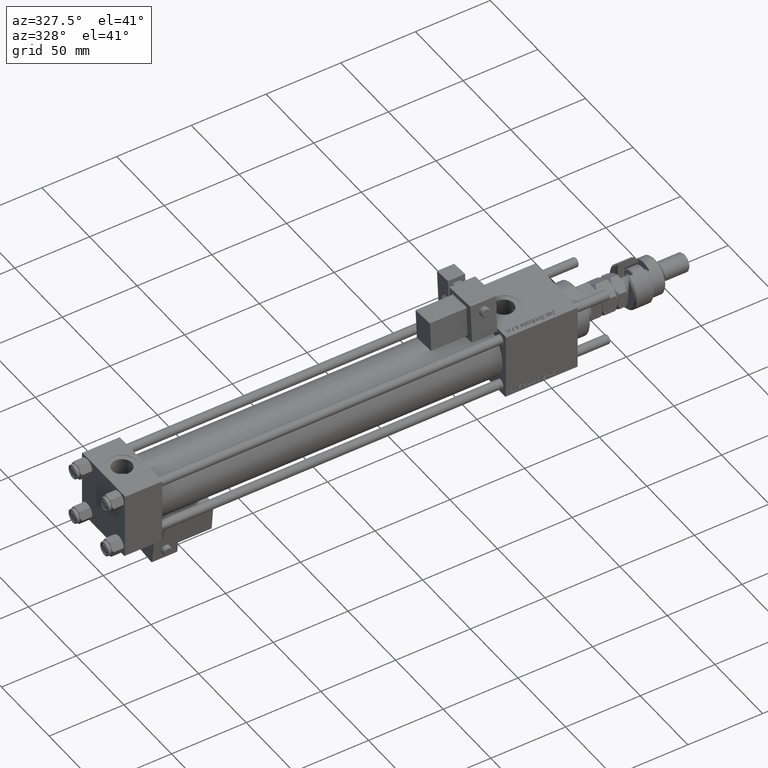
[diagram: clean part render]
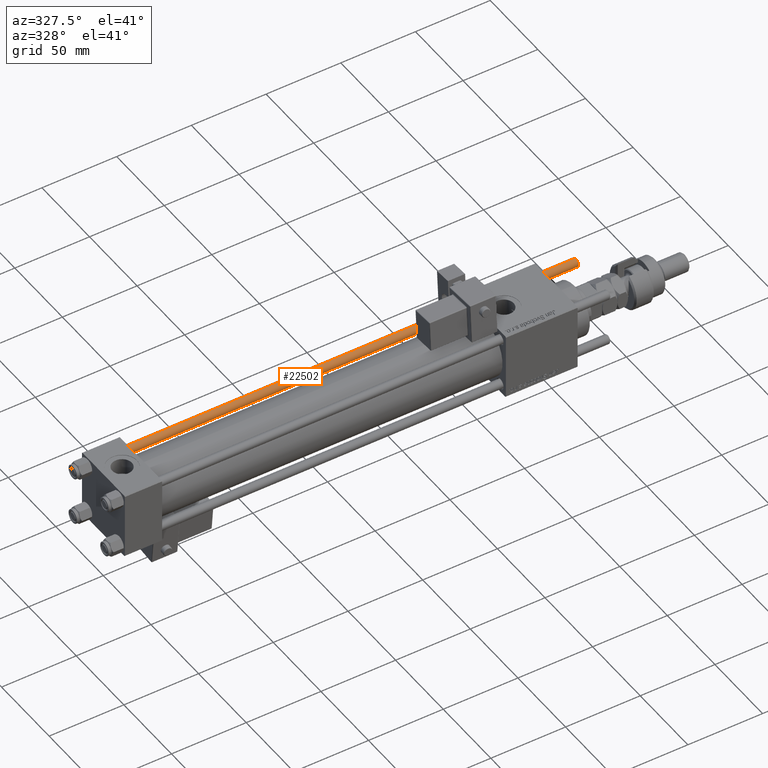
[diagram: same view with one face highlighted and labeled with its STEP entity id]
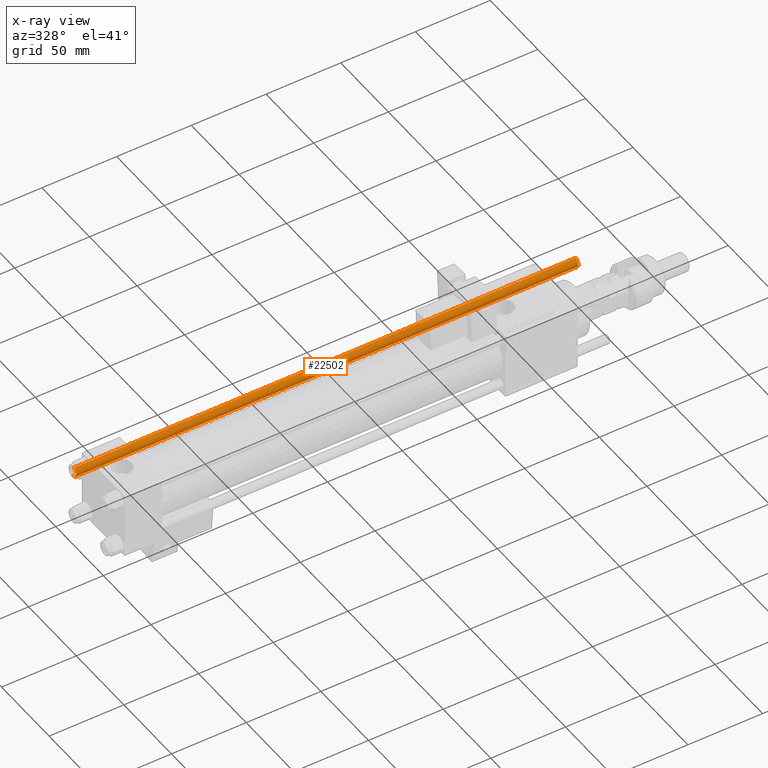
[diagram: x-ray of the same camera — body ghosted, the highlighted face saturated]
A machine part, auxiliary view. The second image highlights one B-rep face of the part: STEP entity #22502.
The next image is the same camera in x-ray: the body ghosted, the highlighted face saturated — about 0% of this face is hidden behind the body in this view.
In plain terms, the highlighted cylindrical surface (edge-blend (fillet) strip) has radius 3 mm, axis along (1, -0, -0).
Its self-contained STEP definition (entity closure, byte-faithful):
#3593 = DIRECTION ( 'NONE',  ( -0.000000000000000000, -0.000000000000000000, 1.000000000000000000 ) ) ;
#5248 = DIRECTION ( 'NONE',  ( -1.000000000000000000, 0.000000000000000000, 0.000000000000000000 ) ) ;
#8476 = VECTOR ( 'NONE', #39642, 1000.000000000000000 ) ;
#9162 = CARTESIAN_POINT ( 'NONE',  ( 0.000000000000000000, 0.000000000000000000, 336.5000000000000568 ) ) ;
#9396 = CARTESIAN_POINT ( 'NONE',  ( 0.000000000000000000, 0.000000000000000000, 0.5000000000000004441 ) ) ;
#10234 = EDGE_CURVE ( 'NONE', #48389, #12378, #14804, .T. ) ;
#11323 = ORIENTED_EDGE ( 'NONE', *, *, #10234, .T. ) ;
#12378 = VERTEX_POINT ( 'NONE', #59832 ) ;
#12971 = ORIENTED_EDGE ( 'NONE', *, *, #61048, .T. ) ;
#13694 = DIRECTION ( 'NONE',  ( 0.000000000000000000, 0.000000000000000000, -1.000000000000000000 ) ) ;
#14637 = FACE_OUTER_BOUND ( 'NONE', #52137, .T. ) ;
#14804 = CIRCLE ( 'NONE', #23063, 3.000000000000000444 ) ;
#15050 = CIRCLE ( 'NONE', #23257, 3.000000000000000444 ) ;
#15731 = LINE ( 'NONE', #19933, #8476 ) ;
#19222 = AXIS2_PLACEMENT_3D ( 'NONE', #63770, #49204, #5248 ) ;
#19933 = CARTESIAN_POINT ( 'NONE',  ( 3.000000000000000444, 3.673940397442060361E-16, 337.0000000000000000 ) ) ;
#22502 = ADVANCED_FACE ( 'NONE', ( #14637 ), #44040, .T. ) ;
#23063 = AXIS2_PLACEMENT_3D ( 'NONE', #9396, #3593, #29122 ) ;
#23257 = AXIS2_PLACEMENT_3D ( 'NONE', #9162, #13694, #57347 ) ;
#29122 = DIRECTION ( 'NONE',  ( 1.000000000000000000, 0.000000000000000000, 0.000000000000000000 ) ) ;
#30991 = LINE ( 'NONE', #60728, #36876 ) ;
#31349 = CARTESIAN_POINT ( 'NONE',  ( -3.000000000000000444, 0.000000000000000000, 336.5000000000000568 ) ) ;
#34158 = EDGE_CURVE ( 'NONE', #60374, #48389, #30991, .T. ) ;
#35522 = DIRECTION ( 'NONE',  ( -0.000000000000000000, -0.000000000000000000, -1.000000000000000000 ) ) ;
#36876 = VECTOR ( 'NONE', #35522, 1000.000000000000000 ) ;
#39642 = DIRECTION ( 'NONE',  ( -0.000000000000000000, -0.000000000000000000, -1.000000000000000000 ) ) ;
#40780 = VERTEX_POINT ( 'NONE', #55837 ) ;
#44040 = CYLINDRICAL_SURFACE ( 'NONE', #19222, 3.000000000000000444 ) ;
#44519 = CARTESIAN_POINT ( 'NONE',  ( -3.000000000000000444, 0.000000000000000000, 0.5000000000000004441 ) ) ;
#46958 = EDGE_CURVE ( 'NONE', #40780, #12378, #15731, .T. ) ;
#48389 = VERTEX_POINT ( 'NONE', #44519 ) ;
#49204 = DIRECTION ( 'NONE',  ( -0.000000000000000000, -0.000000000000000000, -1.000000000000000000 ) ) ;
#52137 = EDGE_LOOP ( 'NONE', ( #55349, #12971, #60814, #11323 ) ) ;
#55349 = ORIENTED_EDGE ( 'NONE', *, *, #46958, .F. ) ;
#55837 = CARTESIAN_POINT ( 'NONE',  ( 3.000000000000000444, 3.673940397442060361E-16, 336.5000000000000568 ) ) ;
#57347 = DIRECTION ( 'NONE',  ( 1.000000000000000000, 0.000000000000000000, 0.000000000000000000 ) ) ;
#59832 = CARTESIAN_POINT ( 'NONE',  ( 3.000000000000000444, 3.673940397442060361E-16, 0.5000000000000004441 ) ) ;
#60374 = VERTEX_POINT ( 'NONE', #31349 ) ;
#60728 = CARTESIAN_POINT ( 'NONE',  ( -3.000000000000000444, 0.000000000000000000, 337.0000000000000000 ) ) ;
#60814 = ORIENTED_EDGE ( 'NONE', *, *, #34158, .T. ) ;
#61048 = EDGE_CURVE ( 'NONE', #40780, #60374, #15050, .T. ) ;
#63770 = CARTESIAN_POINT ( 'NONE',  ( 0.000000000000000000, 0.000000000000000000, 337.0000000000000000 ) ) ;